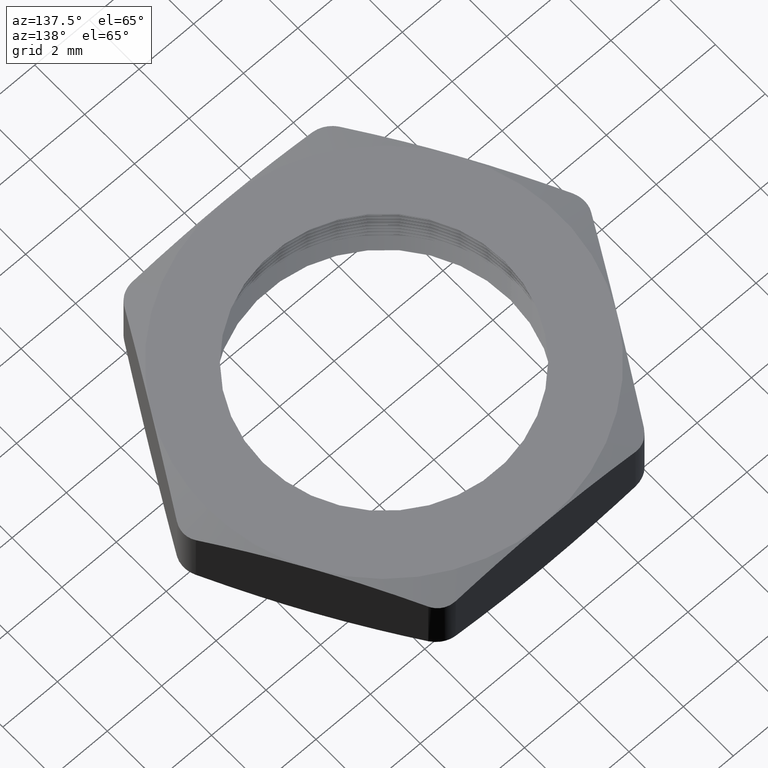
[diagram: clean part render]
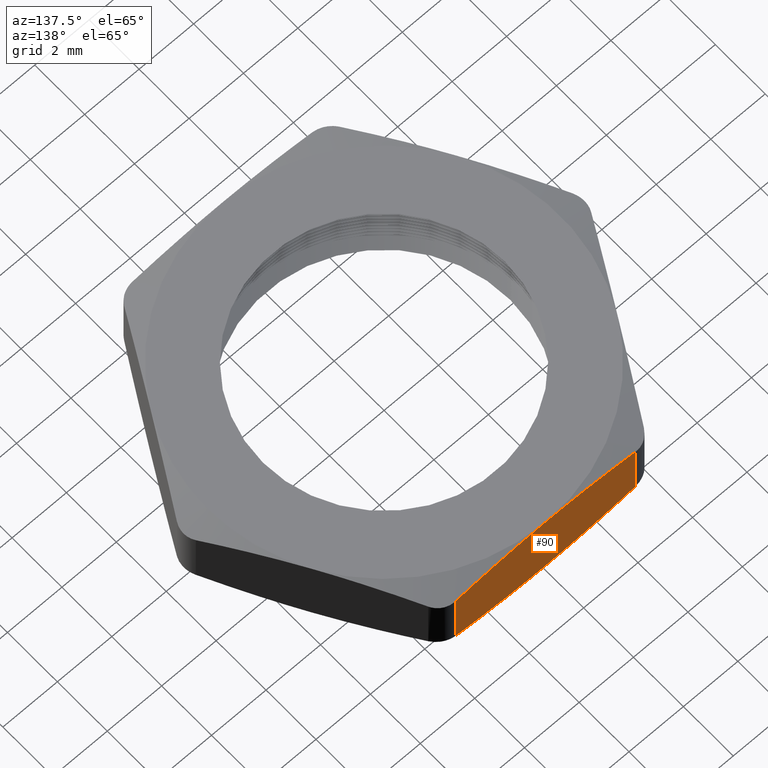
[diagram: same view with one face highlighted and labeled with its STEP entity id]
A machine part, auxiliary view. The second image highlights one B-rep face of the part: STEP entity #90.
In plain terms, the highlighted planar face has unit normal (0, -1, 0).
Its self-contained STEP definition (entity closure, byte-faithful):
#32 = ORIENTED_EDGE ( 'NONE', *, *, #2332, .T. ) ;
#33 = VERTEX_POINT ( 'NONE', #584 ) ;
#34 = VERTEX_POINT ( 'NONE', #583 ) ;
#35 = ORIENTED_EDGE ( 'NONE', *, *, #1361, .F. ) ;
#36 = EDGE_LOOP ( 'NONE', ( #35, #32, #2333, #2329, #2327, #2323 ) ) ;
#46 = VERTEX_POINT ( 'NONE', #624 ) ;
#90 = ADVANCED_FACE ( 'NONE', ( #693 ), #688, .F. ) ;
#583 = CARTESIAN_POINT ( 'NONE',  ( -0.1299038105676660300, 0.2550000000000000600, 0.01134923264674979300 ) ) ;
#584 = CARTESIAN_POINT ( 'NONE',  ( 0.0000000000000000000, 0.2550000000000000600, 0.0000000000000000000 ) ) ;
#624 = CARTESIAN_POINT ( 'NONE',  ( -0.1299038105676660300, 0.2550000000000000600, 0.09865076735325020700 ) ) ;
#684 = DIRECTION ( 'NONE',  ( 0.0000000000000000000, 0.0000000000000000000, -1.000000000000000000 ) ) ;
#685 = DIRECTION ( 'NONE',  ( 0.0000000000000000000, -1.000000000000000000, 0.0000000000000000000 ) ) ;
#686 = CARTESIAN_POINT ( 'NONE',  ( 0.1472243186433547200, 0.2550000000000000600, 0.1100000000000000000 ) ) ;
#687 = AXIS2_PLACEMENT_3D ( 'NONE', #686, #685, #684 ) ;
#688 = PLANE ( 'NONE',  #687 ) ;
#693 = FACE_OUTER_BOUND ( 'NONE', #36, .T. ) ;
#1361 = EDGE_CURVE ( 'NONE', #34, #33, #1393, .T. ) ;
#1391 = CARTESIAN_POINT ( 'NONE',  ( -0.1299038105676660300, 0.2550000000000000600, 0.01134923264674979300 ) ) ;
#1393 = B_SPLINE_CURVE_WITH_KNOTS ( 'NONE', 3,
 ( #1391, #1443, #1442, #1441, #1440, #1439 ),
 .UNSPECIFIED., .F., .F.,
 ( 4, 2, 4 ),
 ( 0.006449094476770362600, 0.008108886953760897600, 0.009768679430751431600 ),
 .UNSPECIFIED. ) ;
#1439 = CARTESIAN_POINT ( 'NONE',  ( 0.0000000000000000000, 0.2550000000000000600, 0.0000000000000000000 ) ) ;
#1440 = CARTESIAN_POINT ( 'NONE',  ( -0.02161212541823658400, 0.2550000000000000600, 3.334775382890940300E-020 ) ) ;
#1441 = CARTESIAN_POINT ( 'NONE',  ( -0.04325637950675546200, 0.2550000000000000600, 0.001014969522354970800 ) ) ;
#1442 = CARTESIAN_POINT ( 'NONE',  ( -0.08660386541922197900, 0.2550000000000001200, 0.004908060805600682200 ) ) ;
#1443 = CARTESIAN_POINT ( 'NONE',  ( -0.1083604183673532200, 0.2550000000000000000, 0.007789971154448400800 ) ) ;
#1910 = CARTESIAN_POINT ( 'NONE',  ( 0.1299038105676659500, 0.2550000000000000600, 0.1100000000000000000 ) ) ;
#1911 = CARTESIAN_POINT ( 'NONE',  ( 0.1299038105676659500, 0.2550000000000000600, 0.09865076735324976300 ) ) ;
#1916 = CARTESIAN_POINT ( 'NONE',  ( 0.1299038105676659500, 0.2550000000000000600, 0.01134923264675023100 ) ) ;
#1940 = CARTESIAN_POINT ( 'NONE',  ( -0.1299038105676660300, 0.2550000000000000600, 0.09865076735325020700 ) ) ;
#1941 = CARTESIAN_POINT ( 'NONE',  ( -0.1083604183673531500, 0.2550000000000000600, 0.1022100288455516200 ) ) ;
#1942 = CARTESIAN_POINT ( 'NONE',  ( -0.08660386541922202000, 0.2550000000000000600, 0.1050919391943992800 ) ) ;
#1943 = CARTESIAN_POINT ( 'NONE',  ( -0.04325637950675551000, 0.2550000000000001200, 0.1089850304776450200 ) ) ;
#1944 = CARTESIAN_POINT ( 'NONE',  ( -0.02161212541823653900, 0.2550000000000000600, 0.1100000000000000000 ) ) ;
#1945 = CARTESIAN_POINT ( 'NONE',  ( 0.0000000000000000000, 0.2550000000000000600, 0.1100000000000000000 ) ) ;
#1946 = DIRECTION ( 'NONE',  ( 0.0000000000000000000, 0.0000000000000000000, 1.000000000000000000 ) ) ;
#1947 = CARTESIAN_POINT ( 'NONE',  ( -0.1299038105676657600, 0.2550000000000000600, 0.1100000000000000000 ) ) ;
#1948 = LINE ( 'NONE', #1947, #1982 ) ;
#1949 = B_SPLINE_CURVE_WITH_KNOTS ( 'NONE', 3,
 ( #1945, #1944, #1943, #1942, #1941, #1940 ),
 .UNSPECIFIED., .F., .F.,
 ( 4, 2, 4 ),
 ( 0.01827658229046992200, 0.01993203293988631700, 0.02158748358930270800 ),
 .UNSPECIFIED. ) ;
#1950 = CARTESIAN_POINT ( 'NONE',  ( 0.0000000000000000000, 0.2550000000000000600, 0.1100000000000000000 ) ) ;
#1951 = CARTESIAN_POINT ( 'NONE',  ( 0.04342102280104383900, 0.2550000000000000600, 0.1100000000000000000 ) ) ;
#1952 = CARTESIAN_POINT ( 'NONE',  ( 0.08670868985734973800, 0.2550000000000000600, 0.1057871889701447200 ) ) ;
#1953 = CARTESIAN_POINT ( 'NONE',  ( 0.1299038105676659500, 0.2550000000000000600, 0.09865076735324976300 ) ) ;
#1954 = B_SPLINE_CURVE_WITH_KNOTS ( 'NONE', 3,
 ( #1953, #1952, #1951, #1950 ),
 .UNSPECIFIED., .F., .F.,
 ( 4, 4 ),
 ( 0.01495060860656479400, 0.01827658229046992200 ),
 .UNSPECIFIED. ) ;
#1955 = CARTESIAN_POINT ( 'NONE',  ( 0.0000000000000000000, 0.2550000000000000600, 0.1100000000000000000 ) ) ;
#1956 = DIRECTION ( 'NONE',  ( 0.0000000000000000000, 0.0000000000000000000, -1.000000000000000000 ) ) ;
#1957 = VECTOR ( 'NONE', #1956, 39.37007874015748100 ) ;
#1958 = CARTESIAN_POINT ( 'NONE',  ( 0.1299038105676659500, 0.2550000000000000600, 0.01134923264675023100 ) ) ;
#1959 = CARTESIAN_POINT ( 'NONE',  ( 0.08670868985734973800, 0.2550000000000000600, 0.004212811029855294800 ) ) ;
#1960 = CARTESIAN_POINT ( 'NONE',  ( 0.04342102280104381100, 0.2550000000000000600, -1.280055723762237100E-019 ) ) ;
#1961 = CARTESIAN_POINT ( 'NONE',  ( 0.0000000000000000000, 0.2550000000000000600, 0.0000000000000000000 ) ) ;
#1962 = B_SPLINE_CURVE_WITH_KNOTS ( 'NONE', 3,
 ( #1961, #1960, #1959, #1958 ),
 .UNSPECIFIED., .F., .F.,
 ( 4, 4 ),
 ( 0.009768679430751431600, 0.01310337630085165400 ),
 .UNSPECIFIED. ) ;
#1963 = LINE ( 'NONE', #1910, #1957 ) ;
#1982 = VECTOR ( 'NONE', #1946, 39.37007874015748100 ) ;
#2322 = VERTEX_POINT ( 'NONE', #1916 ) ;
#2323 = ORIENTED_EDGE ( 'NONE', *, *, #2324, .F. ) ;
#2324 = EDGE_CURVE ( 'NONE', #33, #2322, #1962, .T. ) ;
#2325 = VERTEX_POINT ( 'NONE', #1911 ) ;
#2326 = EDGE_CURVE ( 'NONE', #2325, #2322, #1963, .T. ) ;
#2327 = ORIENTED_EDGE ( 'NONE', *, *, #2326, .T. ) ;
#2328 = VERTEX_POINT ( 'NONE', #1955 ) ;
#2329 = ORIENTED_EDGE ( 'NONE', *, *, #2330, .F. ) ;
#2330 = EDGE_CURVE ( 'NONE', #2325, #2328, #1954, .T. ) ;
#2331 = EDGE_CURVE ( 'NONE', #2328, #46, #1949, .T. ) ;
#2332 = EDGE_CURVE ( 'NONE', #34, #46, #1948, .T. ) ;
#2333 = ORIENTED_EDGE ( 'NONE', *, *, #2331, .F. ) ;